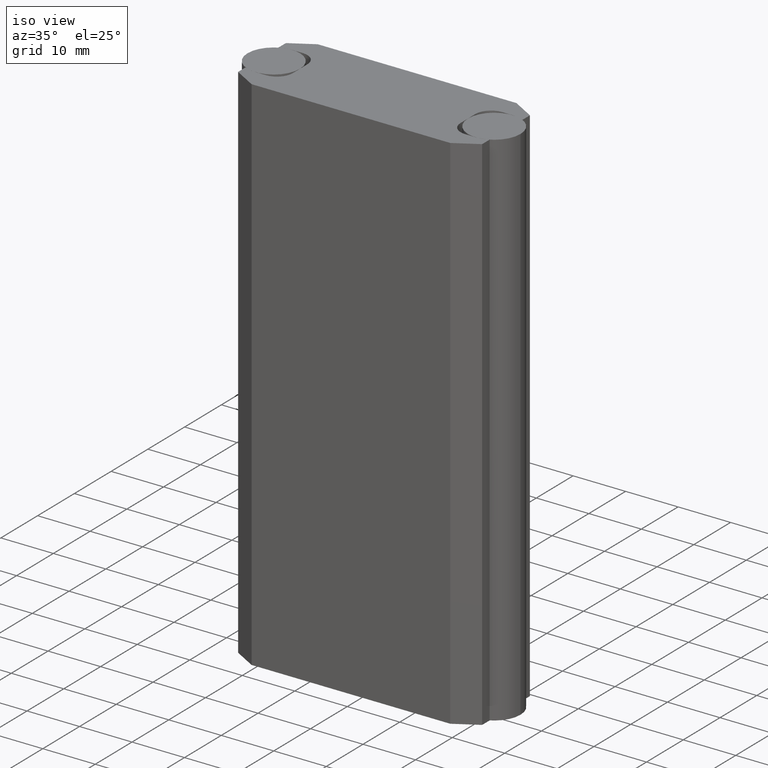
[diagram: clean part render]
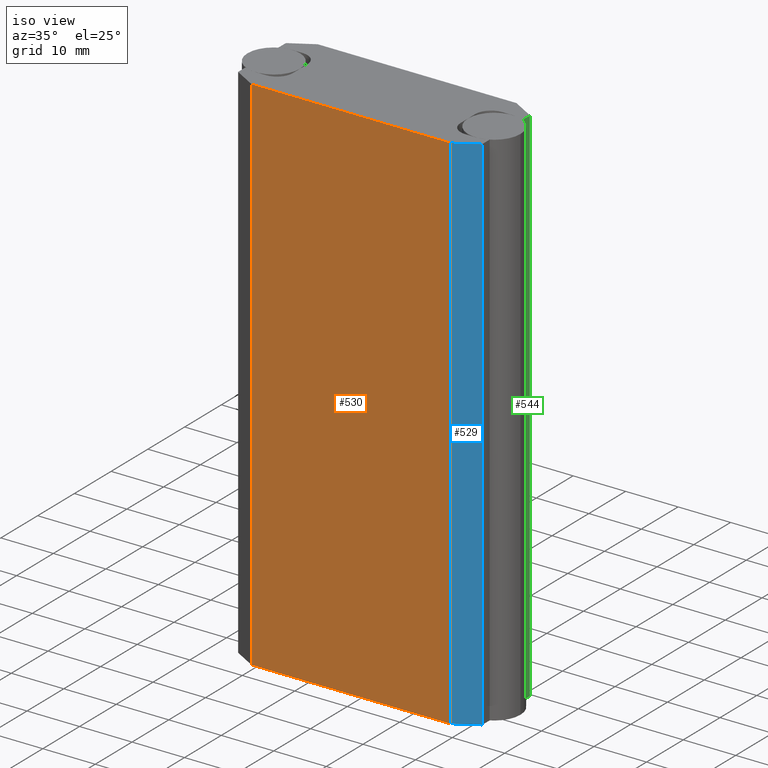
[diagram: same view with three faces highlighted in distinct colors, each labeled with its STEP entity id]
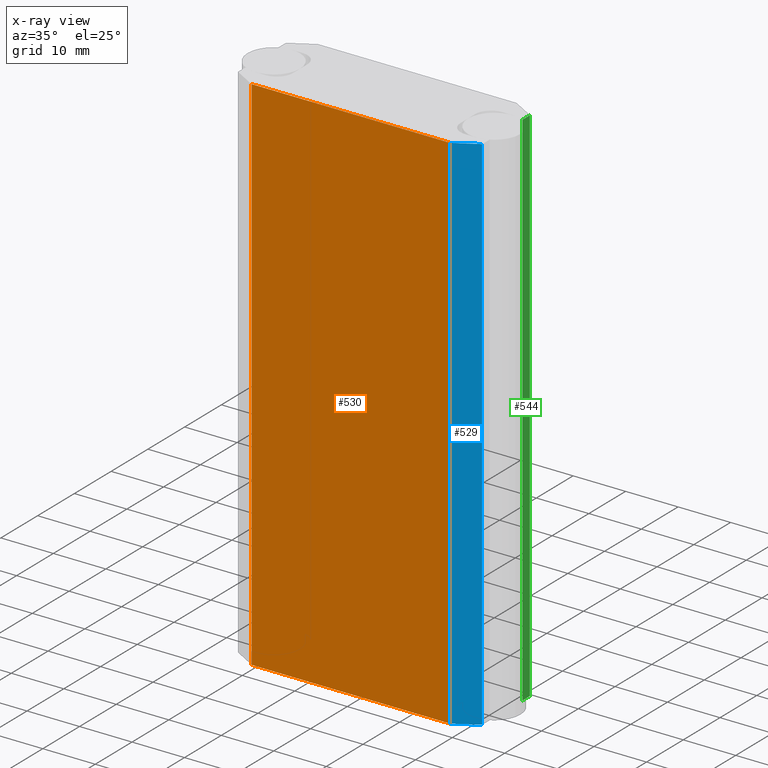
[diagram: x-ray of the same camera — body ghosted, the three highlighted faces saturated]
A machine part, iso view with three faces highlighted in distinct colors.
The next image is the same camera in x-ray (body ghosted, the three faces saturated) — at least one of them is partly hidden behind the body in this view.
Their STEP definitions:

[orange] entity #530 — the highlighted planar face has unit normal (0, -1, 0).
#45=FACE_OUTER_BOUND('',#74,.T.);
#74=EDGE_LOOP('',(#395,#396,#397,#398));
#101=LINE('',#849,#158);
#121=LINE('',#902,#178);
#122=LINE('',#905,#179);
#123=LINE('',#906,#180);
#158=VECTOR('',#684,10.);
#178=VECTOR('',#726,10.);
#179=VECTOR('',#729,10.);
#180=VECTOR('',#730,10.);
#235=VERTEX_POINT('',#846);
#236=VERTEX_POINT('',#848);
#258=VERTEX_POINT('',#900);
#259=VERTEX_POINT('',#904);
#285=EDGE_CURVE('',#235,#236,#101,.T.);
#312=EDGE_CURVE('',#258,#235,#121,.T.);
#313=EDGE_CURVE('',#259,#258,#122,.T.);
#314=EDGE_CURVE('',#259,#236,#123,.T.);
#395=ORIENTED_EDGE('',*,*,#312,.F.);
#396=ORIENTED_EDGE('',*,*,#313,.F.);
#397=ORIENTED_EDGE('',*,*,#314,.T.);
#398=ORIENTED_EDGE('',*,*,#285,.F.);
#509=PLANE('',#634);
#530=ADVANCED_FACE('',(#45),#509,.T.);
#634=AXIS2_PLACEMENT_3D('',#903,#727,#728);
#684=DIRECTION('',(-1.,0.,0.));
#726=DIRECTION('',(0.,0.,-1.));
#727=DIRECTION('center_axis',(0.,-1.,0.));
#728=DIRECTION('ref_axis',(1.,0.,0.));
#729=DIRECTION('',(1.,0.,0.));
#730=DIRECTION('',(0.,0.,-1.));
#846=CARTESIAN_POINT('',(18.9198729809776,-9.00000000009364,-50.));
#848=CARTESIAN_POINT('',(-18.9198729809776,-9.00000000009364,-50.));
#849=CARTESIAN_POINT('',(18.9198729809776,-9.00000000009364,-50.));
#900=CARTESIAN_POINT('',(18.9198729809776,-9.00000000009364,50.));
#902=CARTESIAN_POINT('',(18.9198729809776,-9.00000000009364,0.));
#903=CARTESIAN_POINT('Origin',(-18.9198729809776,-9.00000000009364,0.));
#904=CARTESIAN_POINT('',(-18.9198729809776,-9.00000000009364,50.));
#905=CARTESIAN_POINT('',(18.9198729809776,-9.00000000009364,50.));
#906=CARTESIAN_POINT('',(-18.9198729809776,-9.00000000009364,0.));

[blue] entity #529 — the highlighted planar face has unit normal (0.5, -0.866, 0).
#44=FACE_OUTER_BOUND('',#73,.T.);
#73=EDGE_LOOP('',(#391,#392,#393,#394));
#100=LINE('',#847,#157);
#119=LINE('',#898,#176);
#120=LINE('',#901,#177);
#121=LINE('',#902,#178);
#157=VECTOR('',#683,10.);
#176=VECTOR('',#722,10.);
#177=VECTOR('',#725,10.);
#178=VECTOR('',#726,10.);
#234=VERTEX_POINT('',#844);
#235=VERTEX_POINT('',#846);
#257=VERTEX_POINT('',#896);
#258=VERTEX_POINT('',#900);
#284=EDGE_CURVE('',#234,#235,#100,.T.);
#310=EDGE_CURVE('',#257,#234,#119,.T.);
#311=EDGE_CURVE('',#258,#257,#120,.T.);
#312=EDGE_CURVE('',#258,#235,#121,.T.);
#391=ORIENTED_EDGE('',*,*,#310,.F.);
#392=ORIENTED_EDGE('',*,*,#311,.F.);
#393=ORIENTED_EDGE('',*,*,#312,.T.);
#394=ORIENTED_EDGE('',*,*,#284,.F.);
#508=PLANE('',#633);
#529=ADVANCED_FACE('',(#44),#508,.T.);
#633=AXIS2_PLACEMENT_3D('',#899,#723,#724);
#683=DIRECTION('',(-0.866025403783333,-0.500000000001915,0.));
#722=DIRECTION('',(0.,0.,-1.));
#723=DIRECTION('center_axis',(0.500000000001915,-0.866025403783333,0.));
#724=DIRECTION('ref_axis',(0.866025403783333,0.500000000001915,0.));
#725=DIRECTION('',(0.866025403783333,0.500000000001915,0.));
#726=DIRECTION('',(0.,0.,-1.));
#844=CARTESIAN_POINT('',(23.2499999998236,-6.50000000012483,-50.));
#846=CARTESIAN_POINT('',(18.9198729809776,-9.00000000009364,-50.));
#847=CARTESIAN_POINT('',(23.2499999998236,-6.50000000012483,-50.));
#896=CARTESIAN_POINT('',(23.2499999998236,-6.50000000012483,50.));
#898=CARTESIAN_POINT('',(23.2499999998236,-6.50000000012483,0.));
#899=CARTESIAN_POINT('Origin',(18.9198729809776,-9.00000000009364,0.));
#900=CARTESIAN_POINT('',(18.9198729809776,-9.00000000009364,50.));
#901=CARTESIAN_POINT('',(23.2499999998236,-6.50000000012483,50.));
#902=CARTESIAN_POINT('',(18.9198729809776,-9.00000000009364,0.));

[green] entity #544 — the highlighted planar face has unit normal (1, 0, 0).
#59=FACE_OUTER_BOUND('',#88,.T.);
#88=EDGE_LOOP('',(#451,#452,#453,#454));
#111=LINE('',#877,#168);
#145=LINE('',#958,#202);
#146=LINE('',#961,#203);
#147=LINE('',#962,#204);
#168=VECTOR('',#702,10.);
#202=VECTOR('',#786,10.);
#203=VECTOR('',#789,10.);
#204=VECTOR('',#790,10.);
#249=VERTEX_POINT('',#874);
#250=VERTEX_POINT('',#876);
#272=VERTEX_POINT('',#956);
#273=VERTEX_POINT('',#960);
#299=EDGE_CURVE('',#249,#250,#111,.T.);
#340=EDGE_CURVE('',#272,#249,#145,.T.);
#341=EDGE_CURVE('',#273,#272,#146,.T.);
#342=EDGE_CURVE('',#273,#250,#147,.T.);
#451=ORIENTED_EDGE('',*,*,#340,.F.);
#452=ORIENTED_EDGE('',*,*,#341,.F.);
#453=ORIENTED_EDGE('',*,*,#342,.T.);
#454=ORIENTED_EDGE('',*,*,#299,.F.);
#519=PLANE('',#652);
#544=ADVANCED_FACE('',(#59),#519,.T.);
#652=AXIS2_PLACEMENT_3D('',#959,#787,#788);
#702=DIRECTION('',(0.,-1.,0.));
#786=DIRECTION('',(0.,0.,-1.));
#787=DIRECTION('center_axis',(1.,0.,0.));
#788=DIRECTION('ref_axis',(0.,1.,0.));
#789=DIRECTION('',(0.,1.,0.));
#790=DIRECTION('',(0.,0.,-1.));
#874=CARTESIAN_POINT('',(23.249999999818,6.49999999992076,-50.));
#876=CARTESIAN_POINT('',(23.249999999818,4.46514277474378,-50.));
#877=CARTESIAN_POINT('',(23.249999999818,6.49999999992076,-50.));
#956=CARTESIAN_POINT('',(23.249999999818,6.49999999992076,50.));
#958=CARTESIAN_POINT('',(23.249999999818,6.49999999992076,0.));
#959=CARTESIAN_POINT('Origin',(23.249999999818,4.46514277474378,0.));
#960=CARTESIAN_POINT('',(23.249999999818,4.46514277474378,50.));
#961=CARTESIAN_POINT('',(23.249999999818,6.49999999992076,50.));
#962=CARTESIAN_POINT('',(23.249999999818,4.46514277474378,0.));